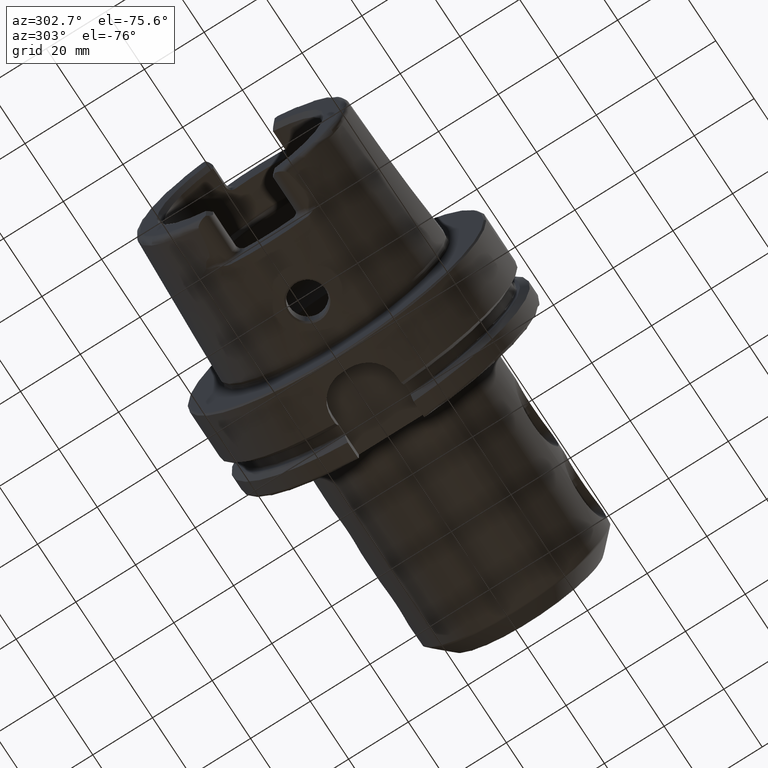
[diagram: clean part render]
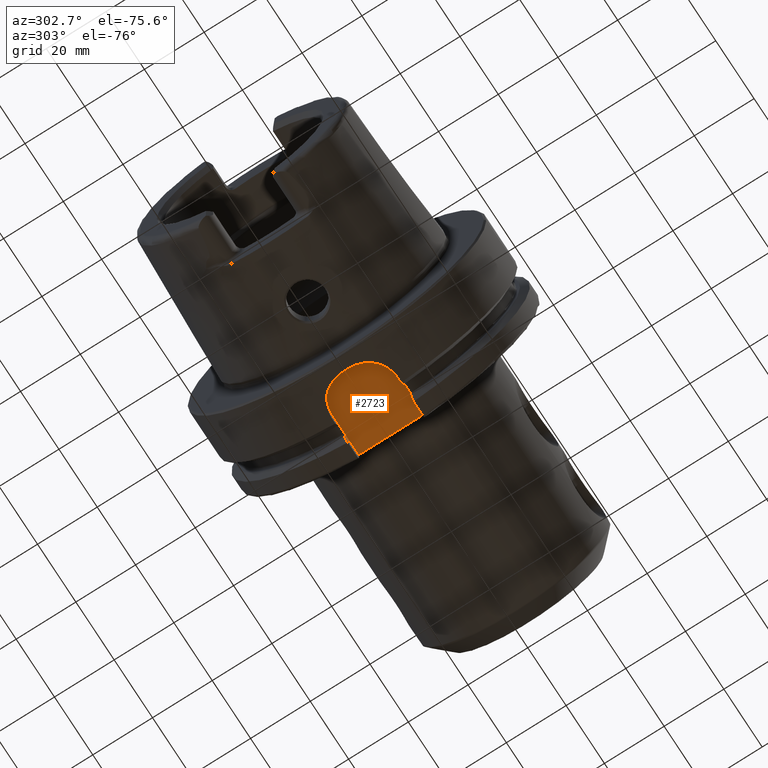
[diagram: same view with one face highlighted and labeled with its STEP entity id]
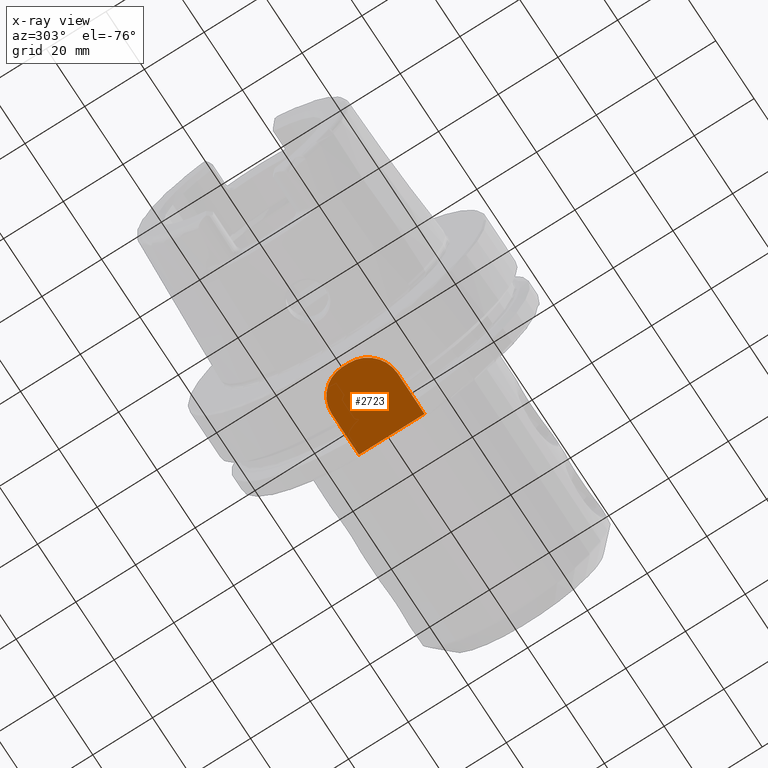
[diagram: x-ray of the same camera — body ghosted, the highlighted face saturated]
A machine part, auxiliary view. The second image highlights one B-rep face of the part: STEP entity #2723.
The next image is the same camera in x-ray: the body ghosted, the highlighted face saturated — about 0% of this face is hidden behind the body in this view.
In plain terms, the highlighted planar face has unit normal (0, 0, 1).
Its self-contained STEP definition (entity closure, byte-faithful):
#206=LINE('',#4555,#333);
#268=LINE('',#5823,#395);
#280=LINE('',#5917,#407);
#282=LINE('',#5923,#409);
#333=VECTOR('',#3297,10.);
#395=VECTOR('',#3629,10.);
#407=VECTOR('',#3647,10.);
#409=VECTOR('',#3655,10.);
#587=FACE_OUTER_BOUND('',#750,.T.);
#750=EDGE_LOOP('',(#2284,#2285,#2286,#2287,#2288,#2289));
#934=CIRCLE('',#3005,10.);
#935=CIRCLE('',#3008,10.);
#1077=VERTEX_POINT('',#4552);
#1078=VERTEX_POINT('',#4554);
#1237=VERTEX_POINT('',#5822);
#1245=VERTEX_POINT('',#5863);
#1246=VERTEX_POINT('',#5865);
#1255=VERTEX_POINT('',#5919);
#1401=EDGE_CURVE('',#1077,#1078,#206,.T.);
#1607=EDGE_CURVE('',#1078,#1237,#268,.T.);
#1618=EDGE_CURVE('',#1245,#1246,#934,.T.);
#1629=EDGE_CURVE('',#1246,#1077,#280,.T.);
#1630=EDGE_CURVE('',#1237,#1255,#935,.T.);
#1632=EDGE_CURVE('',#1255,#1245,#282,.T.);
#2284=ORIENTED_EDGE('',*,*,#1632,.F.);
#2285=ORIENTED_EDGE('',*,*,#1630,.F.);
#2286=ORIENTED_EDGE('',*,*,#1607,.F.);
#2287=ORIENTED_EDGE('',*,*,#1401,.F.);
#2288=ORIENTED_EDGE('',*,*,#1629,.F.);
#2289=ORIENTED_EDGE('',*,*,#1618,.F.);
#2625=PLANE('',#3010);
#2723=ADVANCED_FACE('',(#587),#2625,.F.);
#3005=AXIS2_PLACEMENT_3D('',#5866,#3638,#3639);
#3008=AXIS2_PLACEMENT_3D('',#5920,#3650,#3651);
#3010=AXIS2_PLACEMENT_3D('',#5924,#3656,#3657);
#3297=DIRECTION('',(0.,1.,0.));
#3629=DIRECTION('',(-1.,-1.58603289232165E-16,0.));
#3638=DIRECTION('center_axis',(0.,0.,1.));
#3639=DIRECTION('ref_axis',(-1.,-2.4980018054066E-16,0.));
#3647=DIRECTION('',(1.,1.58603289232165E-16,0.));
#3650=DIRECTION('center_axis',(0.,0.,1.));
#3651=DIRECTION('ref_axis',(-2.22044604925031E-16,1.,0.));
#3655=DIRECTION('',(0.,-1.,0.));
#3656=DIRECTION('center_axis',(0.,0.,1.));
#3657=DIRECTION('ref_axis',(1.,0.,0.));
#4552=CARTESIAN_POINT('',(29.,-11.,-44.));
#4554=CARTESIAN_POINT('',(29.,11.,-44.));
#4555=CARTESIAN_POINT('',(29.,-5.55111512312578E-16,-44.));
#5822=CARTESIAN_POINT('',(15.,11.,-44.));
#5823=CARTESIAN_POINT('',(29.,11.,-44.));
#5863=CARTESIAN_POINT('',(4.99999999999999,-1.00000000000001,-44.));
#5865=CARTESIAN_POINT('',(15.,-11.,-44.));
#5866=CARTESIAN_POINT('Origin',(15.,-1.,-44.));
#5917=CARTESIAN_POINT('',(15.,-11.,-44.));
#5919=CARTESIAN_POINT('',(4.99999999999999,0.999999999999997,-44.));
#5920=CARTESIAN_POINT('Origin',(15.,1.,-44.));
#5923=CARTESIAN_POINT('',(4.99999999999999,0.999999999999997,-44.));
#5924=CARTESIAN_POINT('Origin',(17.,-1.11022302462516E-15,-44.));